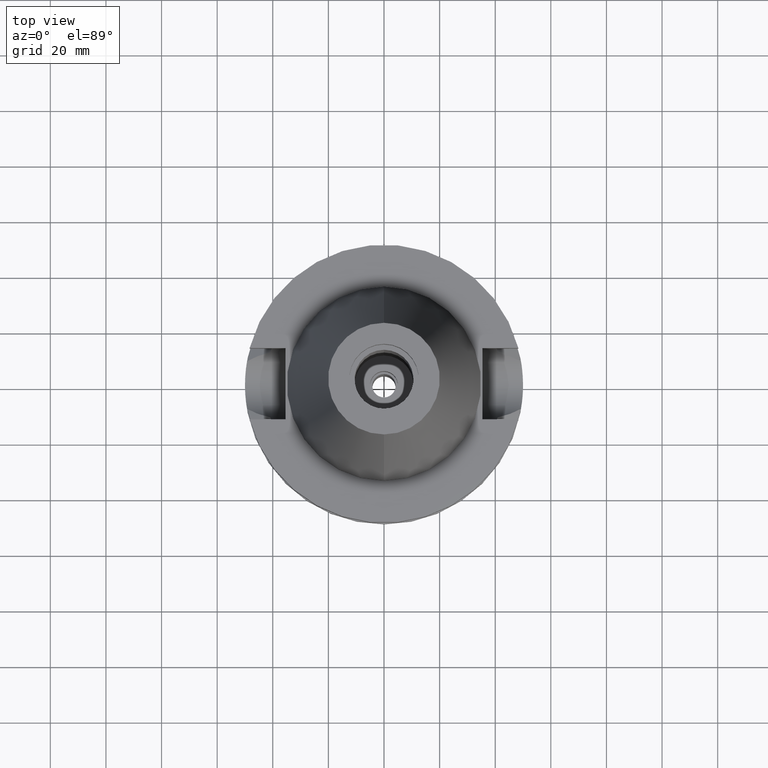
[diagram: clean part render]
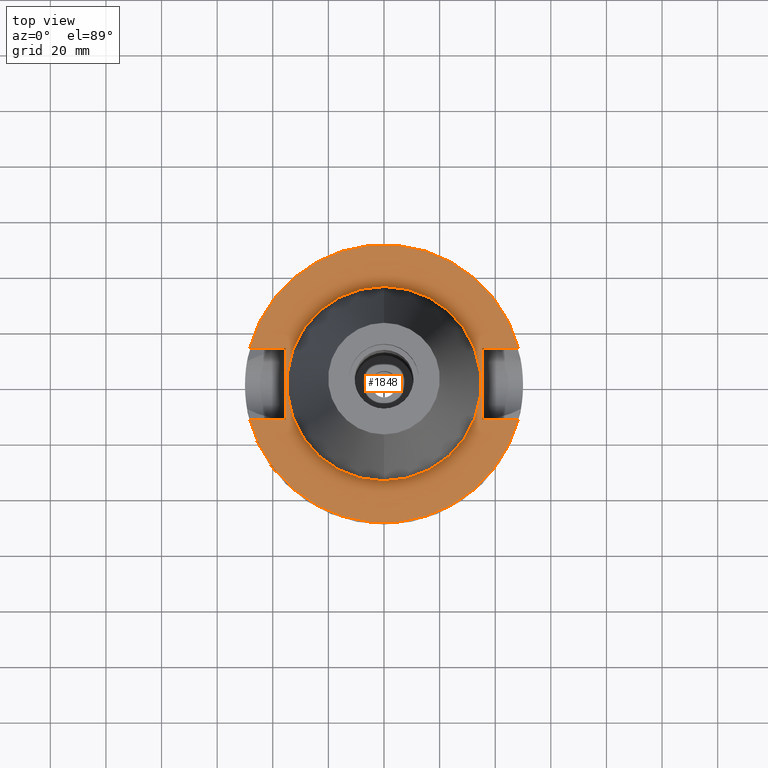
[diagram: same view with one face highlighted and labeled with its STEP entity id]
A machine part, top view. The second image highlights one B-rep face of the part: STEP entity #1848.
In plain terms, the highlighted planar face has unit normal (0, 0, -1).
Its self-contained STEP definition (entity closure, byte-faithful):
#14 = EDGE_CURVE ( 'NONE', #1289, #1907, #2256, .T. ) ;
#28 = AXIS2_PLACEMENT_3D ( 'NONE', #2977, #3654, #2180 ) ;
#32 = EDGE_LOOP ( 'NONE', ( #2398, #3495, #581, #1832, #1407, #3095, #461, #1715 ) ) ;
#78 = LINE ( 'NONE', #904, #2248 ) ;
#179 = FACE_OUTER_BOUND ( 'NONE', #32, .T. ) ;
#238 = CARTESIAN_POINT ( 'NONE',  ( 0.0000000000000000000, 2.603476630306999805E-14, -3.000000000000000000 ) ) ;
#243 = VERTEX_POINT ( 'NONE', #2458 ) ;
#302 = EDGE_CURVE ( 'NONE', #2887, #2508, #2509, .T. ) ;
#352 = CARTESIAN_POINT ( 'NONE',  ( -35.39999999999999858, 12.84999999999999964, -3.000000000000000000 ) ) ;
#371 = LINE ( 'NONE', #1859, #561 ) ;
#459 = CIRCLE ( 'NONE', #3282, 34.92499999999999716 ) ;
#461 = ORIENTED_EDGE ( 'NONE', *, *, #3242, .F. ) ;
#464 = AXIS2_PLACEMENT_3D ( 'NONE', #238, #1720, #1980 ) ;
#468 = VECTOR ( 'NONE', #1612, 1000.000000000000000 ) ;
#482 = CARTESIAN_POINT ( 'NONE',  ( -35.39999999999999858, -12.84999999999999964, -3.000000000000000000 ) ) ;
#561 = VECTOR ( 'NONE', #975, 1000.000000000000000 ) ;
#566 = ORIENTED_EDGE ( 'NONE', *, *, #741, .F. ) ;
#578 = DIRECTION ( 'NONE',  ( 1.000000000000000000, 0.0000000000000000000, 0.0000000000000000000 ) ) ;
#581 = ORIENTED_EDGE ( 'NONE', *, *, #713, .F. ) ;
#593 = DIRECTION ( 'NONE',  ( -1.000000000000000000, 0.0000000000000000000, 0.0000000000000000000 ) ) ;
#644 = EDGE_CURVE ( 'NONE', #2887, #243, #1420, .T. ) ;
#713 = EDGE_CURVE ( 'NONE', #2430, #3197, #371, .T. ) ;
#741 = EDGE_CURVE ( 'NONE', #2837, #891, #2491, .T. ) ;
#820 = DIRECTION ( 'NONE',  ( 0.0000000000000000000, -1.000000000000000000, 0.0000000000000000000 ) ) ;
#891 = VERTEX_POINT ( 'NONE', #1953 ) ;
#904 = CARTESIAN_POINT ( 'NONE',  ( 35.39999999999999858, 12.84999999999999964, -3.000000000000000000 ) ) ;
#975 = DIRECTION ( 'NONE',  ( 1.000000000000000000, 0.0000000000000000000, 0.0000000000000000000 ) ) ;
#1090 = CIRCLE ( 'NONE', #1889, 50.00000000000000000 ) ;
#1122 = CARTESIAN_POINT ( 'NONE',  ( 0.0000000000000000000, 2.603476630306999805E-14, -3.000000000000000000 ) ) ;
#1127 = CARTESIAN_POINT ( 'NONE',  ( 35.39999999999999858, 12.84999999999999964, -3.000000000000000000 ) ) ;
#1130 = CARTESIAN_POINT ( 'NONE',  ( -35.39999999999999858, -12.84999999999999964, -3.000000000000000000 ) ) ;
#1203 = DIRECTION ( 'NONE',  ( 0.0000000000000000000, -1.000000000000000000, 0.0000000000000000000 ) ) ;
#1259 = CARTESIAN_POINT ( 'NONE',  ( 0.0000000000000000000, 34.92499999999999716, -3.000000000000000000 ) ) ;
#1261 = EDGE_LOOP ( 'NONE', ( #566, #2307 ) ) ;
#1273 = CARTESIAN_POINT ( 'NONE',  ( -48.32057015392000210, 12.84999999999999964, -3.000000000000000000 ) ) ;
#1289 = VERTEX_POINT ( 'NONE', #1273 ) ;
#1326 = VECTOR ( 'NONE', #578, 1000.000000000000000 ) ;
#1337 = DIRECTION ( 'NONE',  ( 0.0000000000000000000, 0.0000000000000000000, -1.000000000000000000 ) ) ;
#1407 = ORIENTED_EDGE ( 'NONE', *, *, #3278, .T. ) ;
#1420 = LINE ( 'NONE', #1130, #1824 ) ;
#1440 = DIRECTION ( 'NONE',  ( -1.000000000000000000, 0.0000000000000000000, 0.0000000000000000000 ) ) ;
#1532 = AXIS2_PLACEMENT_3D ( 'NONE', #3052, #1337, #1641 ) ;
#1567 = EDGE_CURVE ( 'NONE', #3197, #243, #1090, .T. ) ;
#1612 = DIRECTION ( 'NONE',  ( 0.0000000000000000000, 1.000000000000000000, 0.0000000000000000000 ) ) ;
#1641 = DIRECTION ( 'NONE',  ( 0.0000000000000000000, -1.000000000000000000, 0.0000000000000000000 ) ) ;
#1661 = CARTESIAN_POINT ( 'NONE',  ( 48.32057015392000210, 12.84999999999999964, -3.000000000000000000 ) ) ;
#1715 = ORIENTED_EDGE ( 'NONE', *, *, #302, .F. ) ;
#1720 = DIRECTION ( 'NONE',  ( 0.0000000000000000000, 0.0000000000000000000, -1.000000000000000000 ) ) ;
#1738 = DIRECTION ( 'NONE',  ( 0.0000000000000000000, 0.0000000000000000000, -1.000000000000000000 ) ) ;
#1824 = VECTOR ( 'NONE', #1440, 1000.000000000000000 ) ;
#1832 = ORIENTED_EDGE ( 'NONE', *, *, #2119, .F. ) ;
#1848 = ADVANCED_FACE ( 'NONE', ( #179, #1911 ), #3562, .F. ) ;
#1859 = CARTESIAN_POINT ( 'NONE',  ( 35.39999999999999858, -12.84999999999999964, -3.000000000000000000 ) ) ;
#1889 = AXIS2_PLACEMENT_3D ( 'NONE', #1122, #1738, #820 ) ;
#1907 = VERTEX_POINT ( 'NONE', #1661 ) ;
#1911 = FACE_BOUND ( 'NONE', #1261, .T. ) ;
#1953 = CARTESIAN_POINT ( 'NONE',  ( 0.0000000000000000000, -34.92499999999999716, -3.000000000000000000 ) ) ;
#1980 = DIRECTION ( 'NONE',  ( 0.0000000000000000000, 1.000000000000000000, 0.0000000000000000000 ) ) ;
#2013 = CARTESIAN_POINT ( 'NONE',  ( -35.39999999999999858, 12.84999999999999964, -3.000000000000000000 ) ) ;
#2108 = VERTEX_POINT ( 'NONE', #3470 ) ;
#2119 = EDGE_CURVE ( 'NONE', #2108, #2430, #78, .T. ) ;
#2180 = DIRECTION ( 'NONE',  ( 0.0000000000000000000, 1.000000000000000000, 0.0000000000000000000 ) ) ;
#2248 = VECTOR ( 'NONE', #1203, 1000.000000000000000 ) ;
#2256 = CIRCLE ( 'NONE', #464, 50.00000000000000000 ) ;
#2307 = ORIENTED_EDGE ( 'NONE', *, *, #2446, .F. ) ;
#2374 = LINE ( 'NONE', #352, #3063 ) ;
#2398 = ORIENTED_EDGE ( 'NONE', *, *, #644, .T. ) ;
#2430 = VERTEX_POINT ( 'NONE', #2862 ) ;
#2446 = EDGE_CURVE ( 'NONE', #891, #2837, #459, .T. ) ;
#2458 = CARTESIAN_POINT ( 'NONE',  ( -48.32057015392000210, -12.84999999999999964, -3.000000000000000000 ) ) ;
#2491 = CIRCLE ( 'NONE', #28, 34.92499999999999716 ) ;
#2508 = VERTEX_POINT ( 'NONE', #2013 ) ;
#2509 = LINE ( 'NONE', #482, #468 ) ;
#2754 = CARTESIAN_POINT ( 'NONE',  ( -35.39999999999999858, -12.84999999999999964, -3.000000000000000000 ) ) ;
#2837 = VERTEX_POINT ( 'NONE', #1259 ) ;
#2842 = DIRECTION ( 'NONE',  ( 0.0000000000000000000, -1.000000000000000000, 0.0000000000000000000 ) ) ;
#2862 = CARTESIAN_POINT ( 'NONE',  ( 35.39999999999999858, -12.84999999999999964, -3.000000000000000000 ) ) ;
#2887 = VERTEX_POINT ( 'NONE', #2754 ) ;
#2977 = CARTESIAN_POINT ( 'NONE',  ( 0.0000000000000000000, 2.603476630306999805E-14, -3.000000000000000000 ) ) ;
#3052 = CARTESIAN_POINT ( 'NONE',  ( 0.0000000000000000000, 1.187907395172999884E-14, -3.000000000000000000 ) ) ;
#3063 = VECTOR ( 'NONE', #593, 1000.000000000000000 ) ;
#3095 = ORIENTED_EDGE ( 'NONE', *, *, #14, .F. ) ;
#3107 = CARTESIAN_POINT ( 'NONE',  ( 0.0000000000000000000, 2.603476630306999805E-14, -3.000000000000000000 ) ) ;
#3197 = VERTEX_POINT ( 'NONE', #3516 ) ;
#3215 = LINE ( 'NONE', #1127, #1326 ) ;
#3242 = EDGE_CURVE ( 'NONE', #2508, #1289, #2374, .T. ) ;
#3278 = EDGE_CURVE ( 'NONE', #2108, #1907, #3215, .T. ) ;
#3282 = AXIS2_PLACEMENT_3D ( 'NONE', #3107, #3444, #2842 ) ;
#3444 = DIRECTION ( 'NONE',  ( 0.0000000000000000000, 0.0000000000000000000, 1.000000000000000000 ) ) ;
#3470 = CARTESIAN_POINT ( 'NONE',  ( 35.39999999999999858, 12.84999999999999964, -3.000000000000000000 ) ) ;
#3495 = ORIENTED_EDGE ( 'NONE', *, *, #1567, .F. ) ;
#3516 = CARTESIAN_POINT ( 'NONE',  ( 48.32057015392000210, -12.84999999999999964, -3.000000000000000000 ) ) ;
#3562 = PLANE ( 'NONE',  #1532 ) ;
#3654 = DIRECTION ( 'NONE',  ( 0.0000000000000000000, 0.0000000000000000000, 1.000000000000000000 ) ) ;